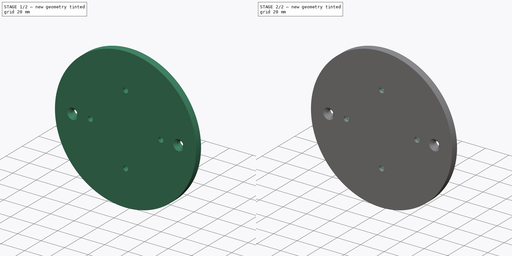
[diagram: build sequence overview — one tinted view per stage of 2, left to right]
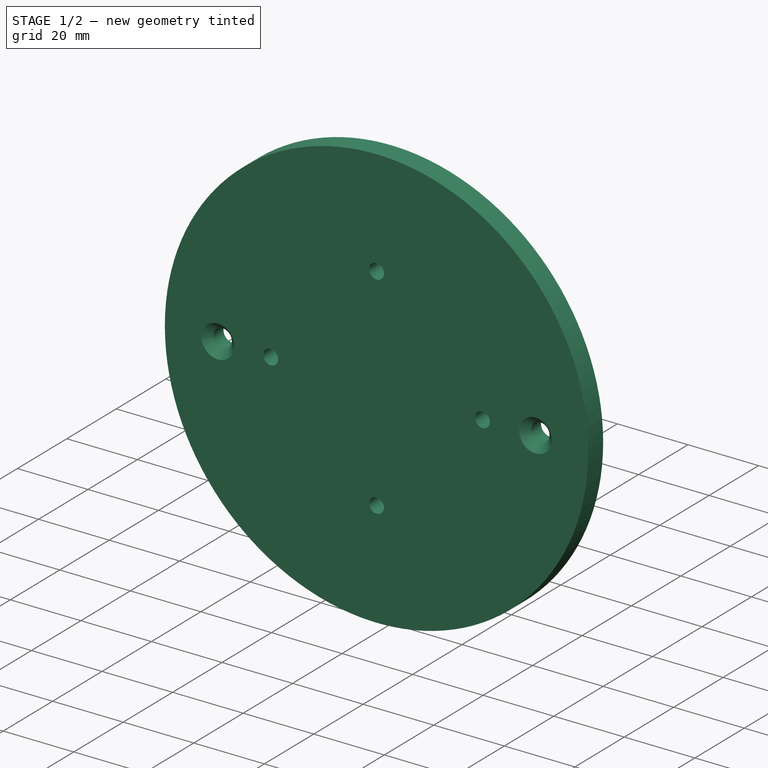
[diagram: stage 1 of 2 — iso view after this stage's code; geometry added in this stage tinted green]
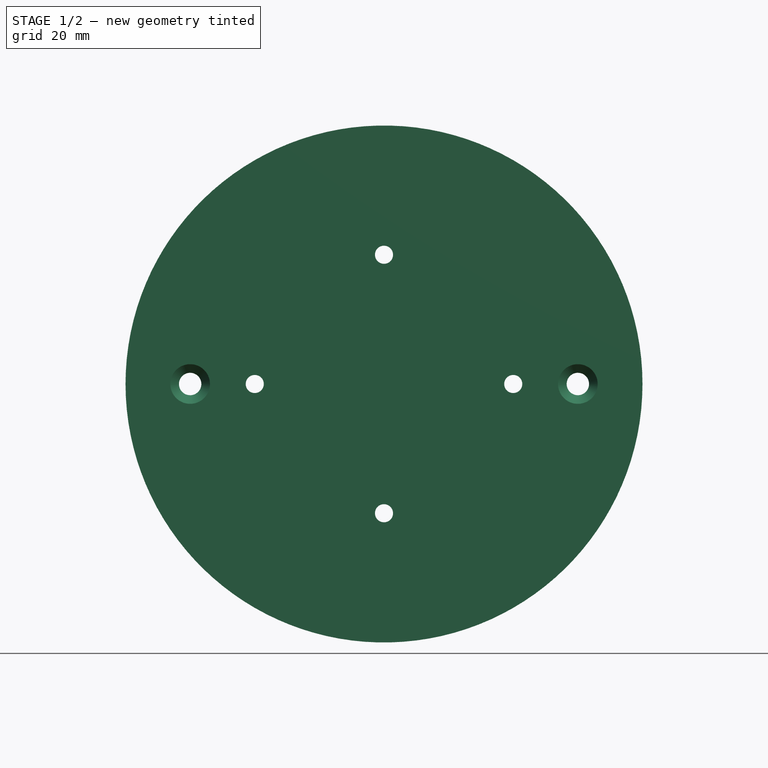
[diagram: stage 1 of 2 — front view after this stage's code; geometry added in this stage tinted green]
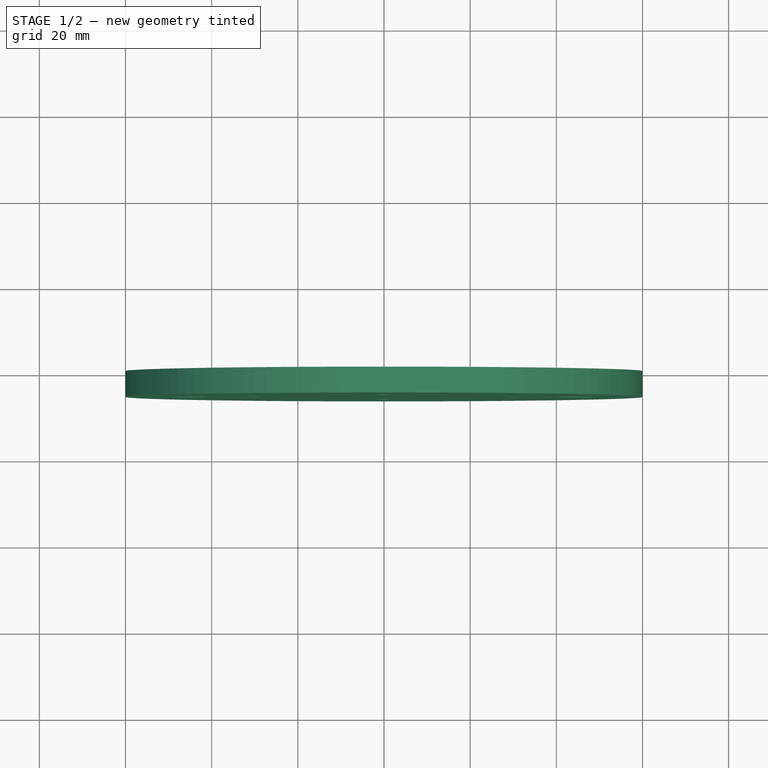
[diagram: stage 1 of 2 — top view after this stage's code; geometry added in this stage tinted green]
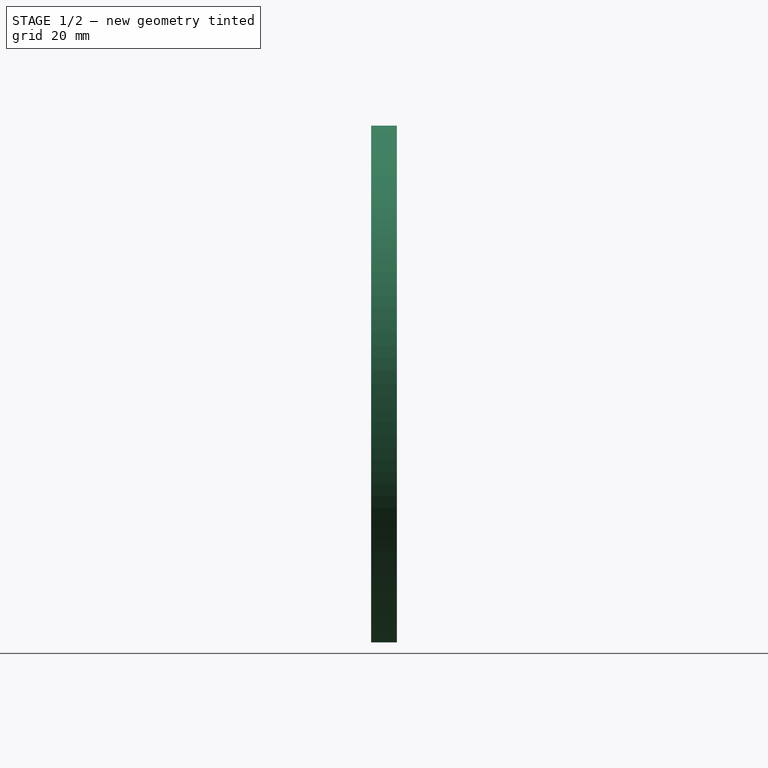
[diagram: stage 1 of 2 — right view after this stage's code; geometry added in this stage tinted green]
FCSTD DOCUMENT  (FreeCAD 0.19R23756 (Git))
Label: ubnt-plate
License: All rights reserved
LicenseURL: http://en.wikipedia.org/wiki/All_rights_reserved
objects: Sketcher::SketchObject×2, PartDesign::Pad×1, PartDesign::Chamfer×1, PartDesign::Pocket×1, PartDesign::Body×1
note: 9 computed .brp shape members not serialized (recipe doc carries the construction recipe); baked Part::Feature solids carry a one-line shape summary decoded from their .brp

FEATURE [Sketcher::SketchObject] Sketch
  FullyConstrained = true
  MapMode = 5
  Placement = pos=(0,0,0) rot=(1,0,0;1.5708rad)
  Support = -> [XZ_Plane]
  sketch-geometry (7):
    g0: Circle CenterX=0 CenterY=0 CenterZ=0 NormalX=0 NormalY=0 NormalZ=1 AngleXU=0 Radius=60
    g1: Circle CenterX=-45 CenterY=0 CenterZ=0 NormalX=0 NormalY=0 NormalZ=1 AngleXU=0 Radius=2.6
    g2: Circle CenterX=45 CenterY=0 CenterZ=0 NormalX=0 NormalY=0 NormalZ=1 AngleXU=0 Radius=2.6
    g3: Circle CenterX=-30 CenterY=0 CenterZ=0 NormalX=0 NormalY=0 NormalZ=1 AngleXU=0 Radius=2.1
    g4: Circle CenterX=30 CenterY=1e-16 CenterZ=0 NormalX=0 NormalY=0 NormalZ=1 AngleXU=0 Radius=2.1
    g5: Circle CenterX=0 CenterY=30 CenterZ=0 NormalX=0 NormalY=0 NormalZ=1 AngleXU=0 Radius=2.1
    g6: Circle CenterX=0 CenterY=-30 CenterZ=0 NormalX=0 NormalY=0 NormalZ=1 AngleXU=0 Radius=2.1
  constraints (17):
    c: Coincident(g0,g-1)
    c: PointOnObject(g1,g-1)
    c: PointOnObject(g3,g-1)
    c: PointOnObject(g5,g-2)
    c: Diameter(g0) = 120
    c: Equal(g5,g4)
    c: Equal(g4,g6)
    c: Equal(g6,g3)
    c: Equal(g1,g2)
    c: DistanceX(g1,g2) = 90
    c: Symmetric(g1,g2,g0)
    c: Diameter(g2) = 5.2
    c: Symmetric(g3,g4,g0)
    c: DistanceX(g3,g4) = 60
    c: DistanceY(g6,g5) = 60
    c: Symmetric(g5,g6,g0)
    c: Diameter(g5) = 4.2
FEATURE [PartDesign::Pad] Pad
  Direction = (1,1,1)
  Length = 6
  Length2 = 100
  Placement = pos=(0,0,0) rot=(1,0,0;1.5708rad)
  Profile = -> Sketch
  Type = 0
FEATURE [PartDesign::Chamfer] Chamfer
  Angle = 45
  Base = -> Pad [Edge9,Edge6]
  BaseFeature = -> Pad
  ChamferType = 0
  FlipDirection = false
  Placement = pos=(0,0,0) rot=(1,0,0;1.5708rad)
  Size = 2
  Size2 = 1
  SupportTransform = false
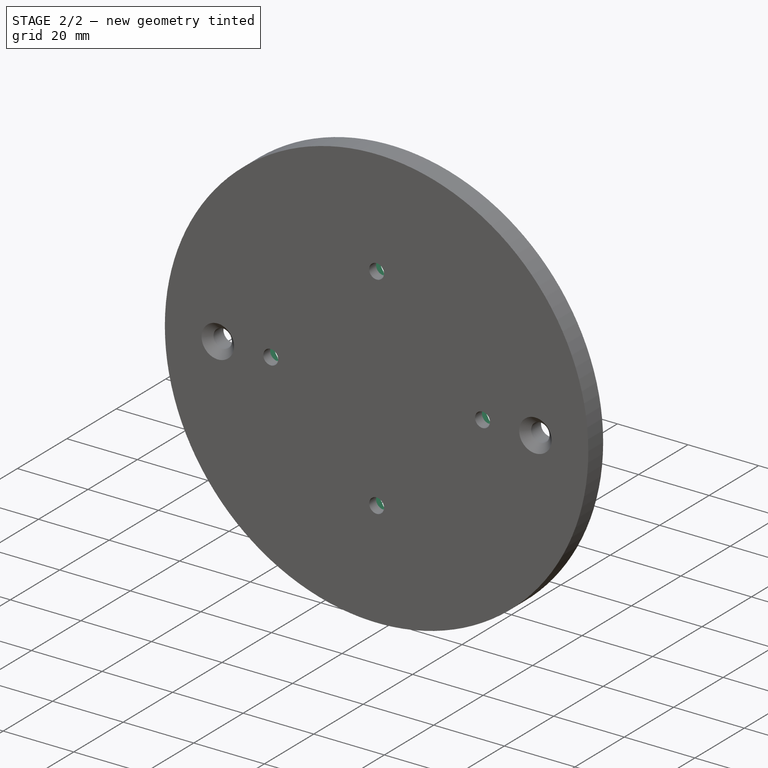
[diagram: stage 2 of 2 — iso view after this stage's code; geometry added in this stage tinted green]
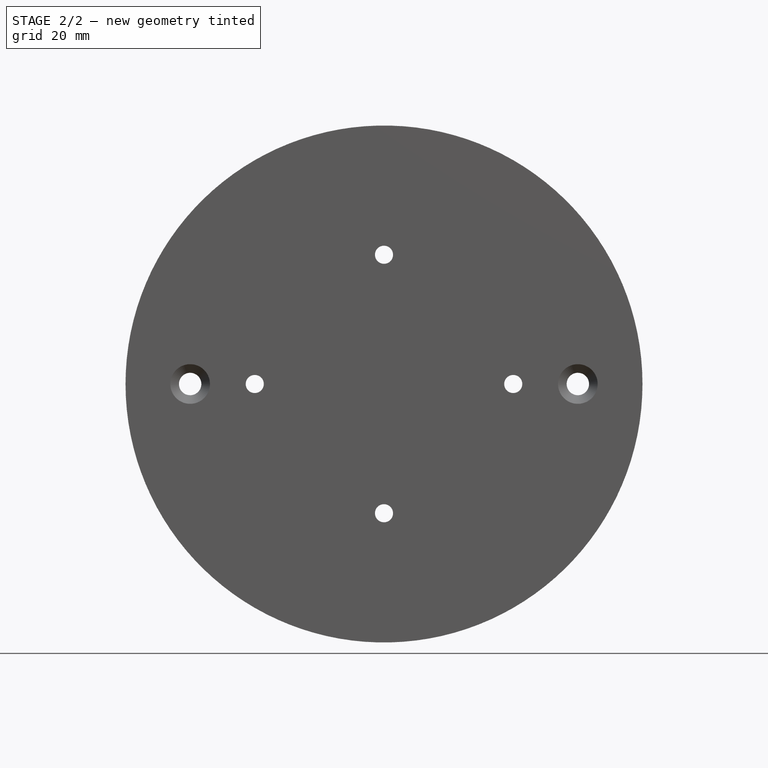
[diagram: stage 2 of 2 — front view after this stage's code; geometry added in this stage tinted green]
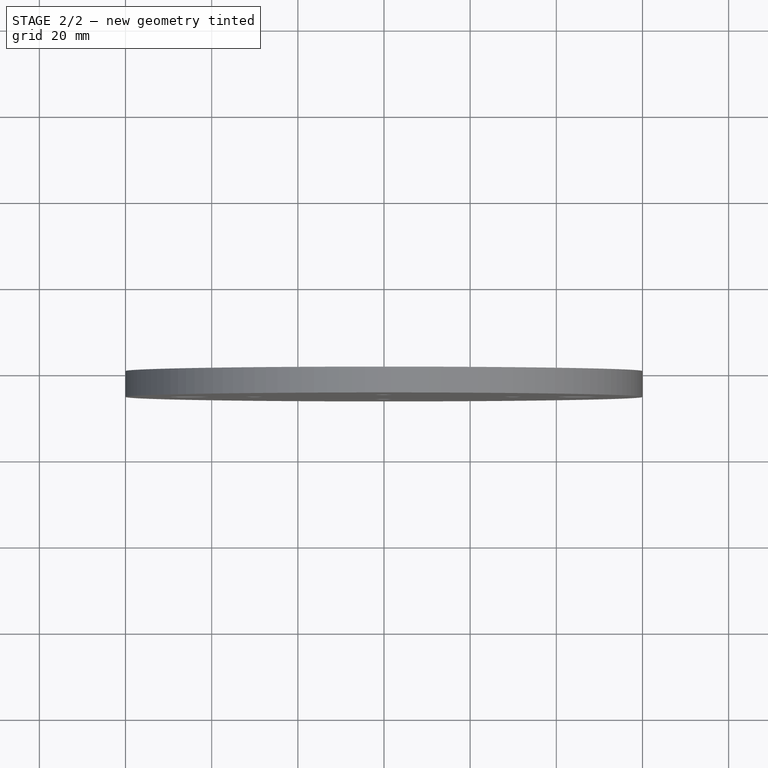
[diagram: stage 2 of 2 — top view after this stage's code; geometry added in this stage tinted green]
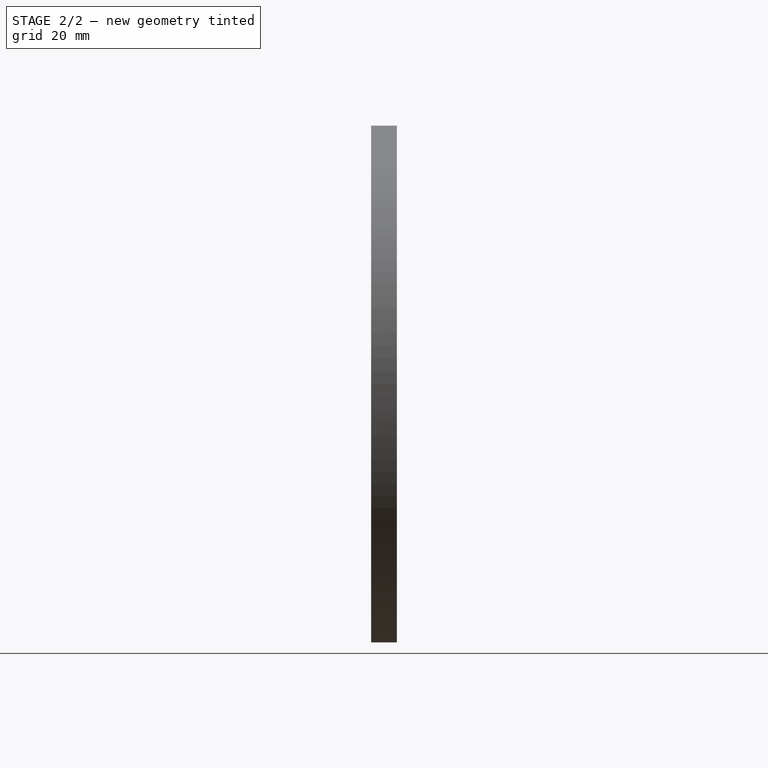
[diagram: stage 2 of 2 — right view after this stage's code; geometry added in this stage tinted green]
FEATURE [Sketcher::SketchObject] Sketch001
  FullyConstrained = true
  MapMode = 5
  Placement = pos=(0,0,0) rot=(1,0,0;1.5708rad)
  Support = -> [XZ_Plane]
  sketch-geometry (28):
    g0: LineSegment StartX=2 StartY=33.4641 StartZ=0 EndX=-2 EndY=33.4641 EndZ=0
    g1: LineSegment StartX=-2 StartY=33.4641 StartZ=0 EndX=-4 EndY=30 EndZ=0
    g2: LineSegment StartX=-4 StartY=30 StartZ=0 EndX=-2 EndY=26.5359 EndZ=0
    g3: LineSegment StartX=-2 StartY=26.5359 StartZ=0 EndX=2 EndY=26.5359 EndZ=0
    g4: LineSegment StartX=2 StartY=26.5359 StartZ=0 EndX=4 EndY=30 EndZ=0
    g5: LineSegment StartX=4 StartY=30 StartZ=0 EndX=2 EndY=33.4641 EndZ=0
    g6: Circle CenterX=0 CenterY=30 CenterZ=0 NormalX=0 NormalY=0 NormalZ=1 AngleXU=0 Radius=4
    g7: LineSegment StartX=32 StartY=3.4641 StartZ=0 EndX=28 EndY=3.4641 EndZ=0
    g8: LineSegment StartX=28 StartY=3.4641 StartZ=0 EndX=26 EndY=3.064e-13 EndZ=0
    g9: LineSegment StartX=26 StartY=3.065e-13 StartZ=0 EndX=28 EndY=-3.4641 EndZ=0
    g10: LineSegment StartX=28 StartY=-3.4641 StartZ=0 EndX=32 EndY=-3.4641 EndZ=0
    g11: LineSegment StartX=32 StartY=-3.4641 StartZ=0 EndX=34 EndY=3.06e-13 EndZ=0
    g12: LineSegment StartX=34 StartY=3.06e-13 StartZ=0 EndX=32 EndY=3.4641 EndZ=0
    g13: Circle CenterX=30 CenterY=0 CenterZ=0 NormalX=0 NormalY=0 NormalZ=1 AngleXU=0 Radius=4
    g14: LineSegment StartX=2 StartY=-26.5359 StartZ=0 EndX=-2 EndY=-26.5359 EndZ=0
    g15: LineSegment StartX=-2 StartY=-26.5359 StartZ=0 EndX=-4 EndY=-30 EndZ=0
    g16: LineSegment StartX=-4 StartY=-30 StartZ=0 EndX=-2 EndY=-33.4641 EndZ=0
    g17: LineSegment StartX=-2 StartY=-33.4641 StartZ=0 EndX=2 EndY=-33.4641 EndZ=0
    g18: LineSegment StartX=2 StartY=-33.4641 StartZ=0 EndX=4 EndY=-30 EndZ=0
    g19: LineSegment StartX=4 StartY=-30 StartZ=0 EndX=2 EndY=-26.5359 EndZ=0
    g20: Circle CenterX=0 CenterY=-30 CenterZ=0 NormalX=0 NormalY=0 NormalZ=1 AngleXU=0 Radius=4
    g21: LineSegment StartX=-32 StartY=3.4641 StartZ=0 EndX=-34 EndY=-3.29e-14 EndZ=0
    g22: LineSegment StartX=-34 StartY=-3.29e-14 StartZ=0 EndX=-32 EndY=-3.4641 EndZ=0
    g23: LineSegment StartX=-32 StartY=-3.4641 StartZ=0 EndX=-28 EndY=-3.4641 EndZ=0
    g24: LineSegment StartX=-28 StartY=-3.4641 StartZ=0 EndX=-26 EndY=4.752e-13 EndZ=0
    g25: LineSegment StartX=-26 StartY=4.752e-13 StartZ=0 EndX=-28 EndY=3.4641 EndZ=0
    g26: LineSegment StartX=-28 StartY=3.4641 StartZ=0 EndX=-32 EndY=3.4641 EndZ=0
    g27: Circle CenterX=-30 CenterY=0 CenterZ=0 NormalX=0 NormalY=0 NormalZ=1 AngleXU=0 Radius=4
  constraints (66):
    c: Coincident(g0,g1)
    c: Coincident(g1,g2)
    c: Coincident(g2,g3)
    c: Coincident(g3,g4)
    c: Coincident(g4,g5)
    c: Coincident(g5,g0)
    c: Equal(g0, g1-g5) x5
    c: PointOnObject(g0,g6)
    c: PointOnObject(g1,g6)
    c: PointOnObject(g2,g6)
    c: PointOnObject(g3,g6)
    c: PointOnObject(g4,g6)
    c: PointOnObject(g5,g6)
    c: PointOnObject(g6,g-2)
    c: Coincident(g7,g8)
    c: Coincident(g8,g9)
    c: Coincident(g9,g10)
    c: Coincident(g10,g11)
    c: Coincident(g11,g12)
    c: Coincident(g12,g7)
    c: Equal(g7, g8-g12) x5
    c: PointOnObject(g7,g13)
    c: PointOnObject(g8,g13)
    c: PointOnObject(g9,g13)
    c: PointOnObject(g10,g13)
    c: PointOnObject(g11,g13)
    c: PointOnObject(g12,g13)
    c: PointOnObject(g13,g-1)
    c: Coincident(g14,g15)
    c: Coincident(g15,g16)
    c: Coincident(g16,g17)
    c: Coincident(g17,g18)
    c: Coincident(g18,g19)
    c: Coincident(g19,g14)
    c: Equal(g14, g15-g19) x5
    c: PointOnObject(g14,g20)
    c: PointOnObject(g15,g20)
    c: PointOnObject(g16,g20)
    c: PointOnObject(g17,g20)
    c: PointOnObject(g18,g20)
    c: PointOnObject(g19,g20)
    c: Coincident(g21,g22)
    c: Coincident(g22,g23)
    c: Coincident(g23,g24)
    c: Coincident(g24,g25)
    c: Coincident(g25,g26)
    c: Coincident(g26,g21)
    c: Equal(g21, g22-g26) x5
    c: PointOnObject(g21,g27)
    c: PointOnObject(g22,g27)
    c: PointOnObject(g23,g27)
    c: PointOnObject(g24,g27)
    c: PointOnObject(g25,g27)
    c: PointOnObject(g26,g27)
    c: Symmetric(g6,g20,g-1)
    c: DistanceY(g20,g6) = 60
    c: Symmetric(g27,g13,g-1)
    c: DistanceX(g27,g13) = 60
    c: Horizontal(g26)
    c: Horizontal(g7)
    c: Horizontal(g0)
    c: Horizontal(g14)
    c: Equal(g27,g6)
    c: Equal(g6,g13)
    c: Equal(g13,g20)
    c: Diameter(g13) = 8
FEATURE [PartDesign::Pocket] Pocket
  BaseFeature = -> Chamfer
  Length = 3.2
  Length2 = 100
  Placement = pos=(0,0,0) rot=(1,0,0;1.5708rad)
  Profile = -> Sketch001
  Reversed = true
  Type = 0
FEATURE [PartDesign::Body] Body
  Group = -> [Sketch,Pad,Chamfer,Sketch001,Pocket]
  Origin = -> Origin
  Tip = -> Pocket
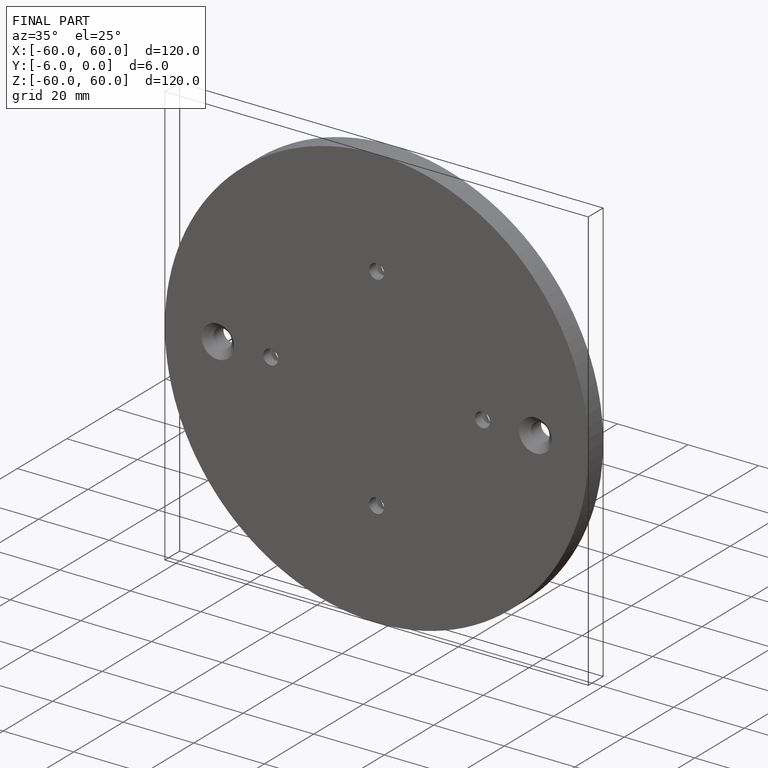
[diagram: finished part — iso view with bounding-box wireframe]
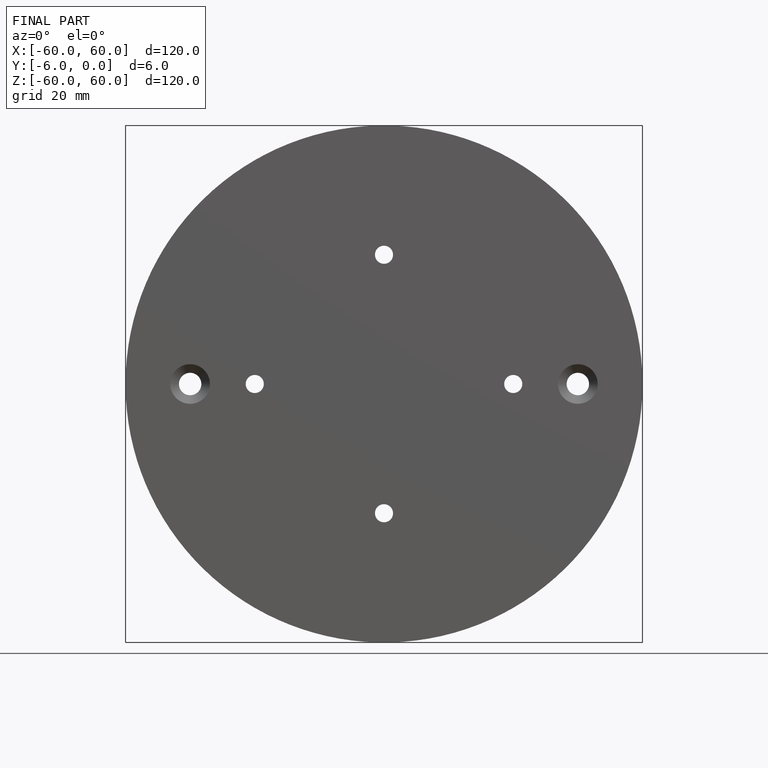
[diagram: finished part — front view with bounding-box wireframe]
